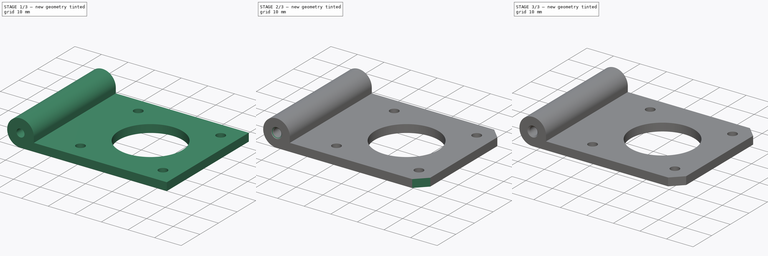
[diagram: build sequence overview — one tinted view per stage of 3, left to right]
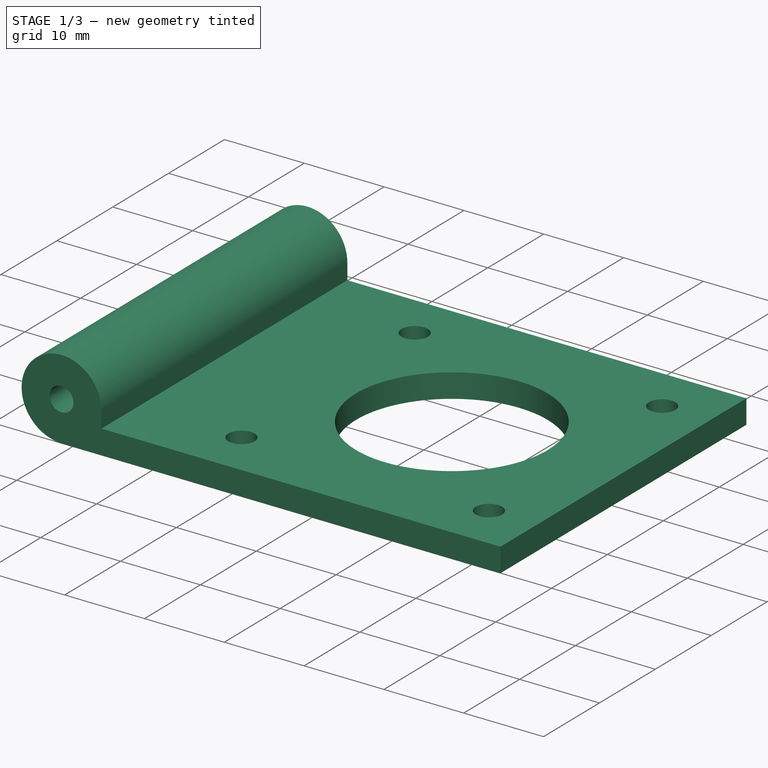
[diagram: stage 1 of 3 — iso view after this stage's code; geometry added in this stage tinted green]
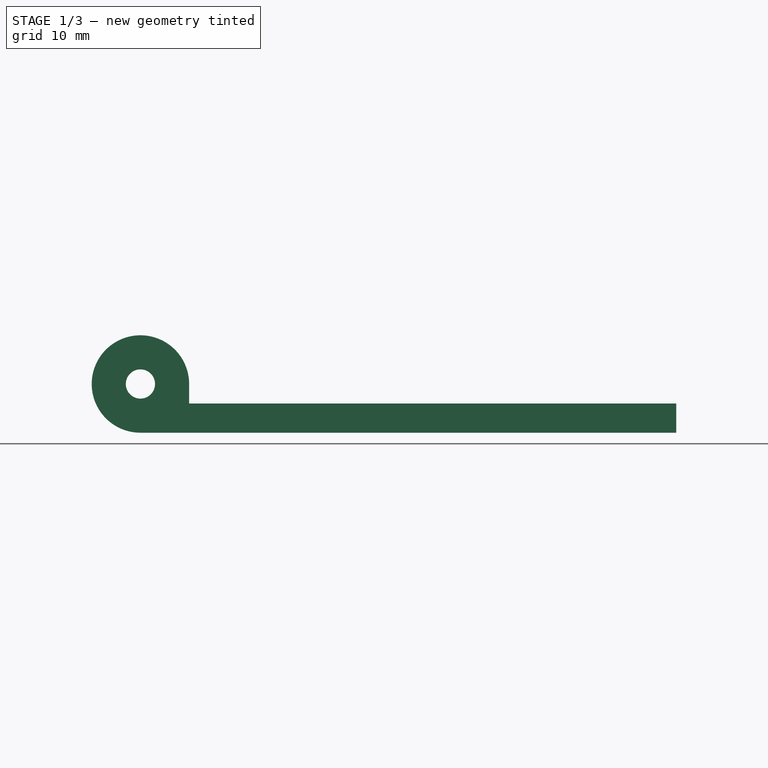
[diagram: stage 1 of 3 — front view after this stage's code; geometry added in this stage tinted green]
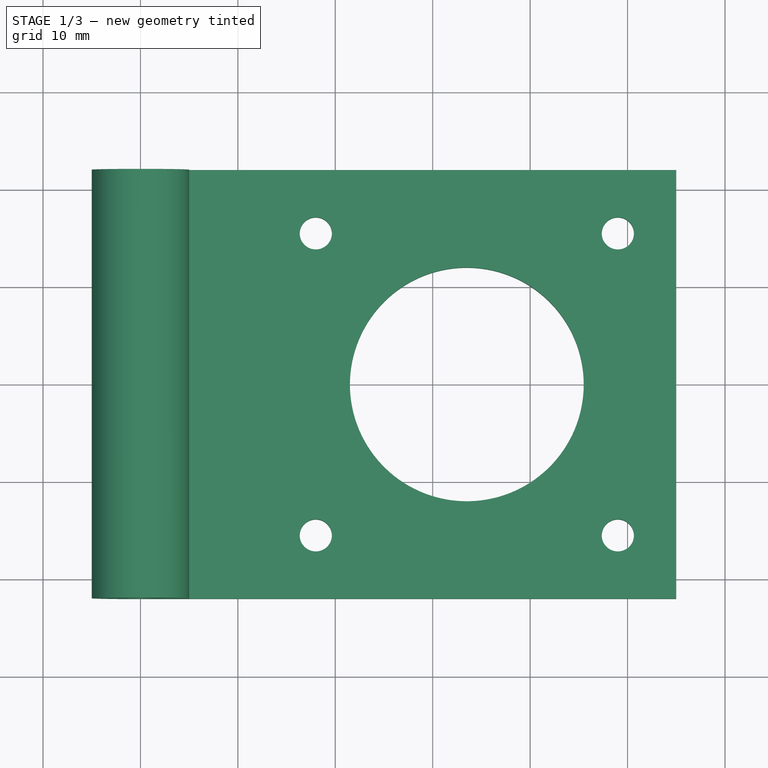
[diagram: stage 1 of 3 — top view after this stage's code; geometry added in this stage tinted green]
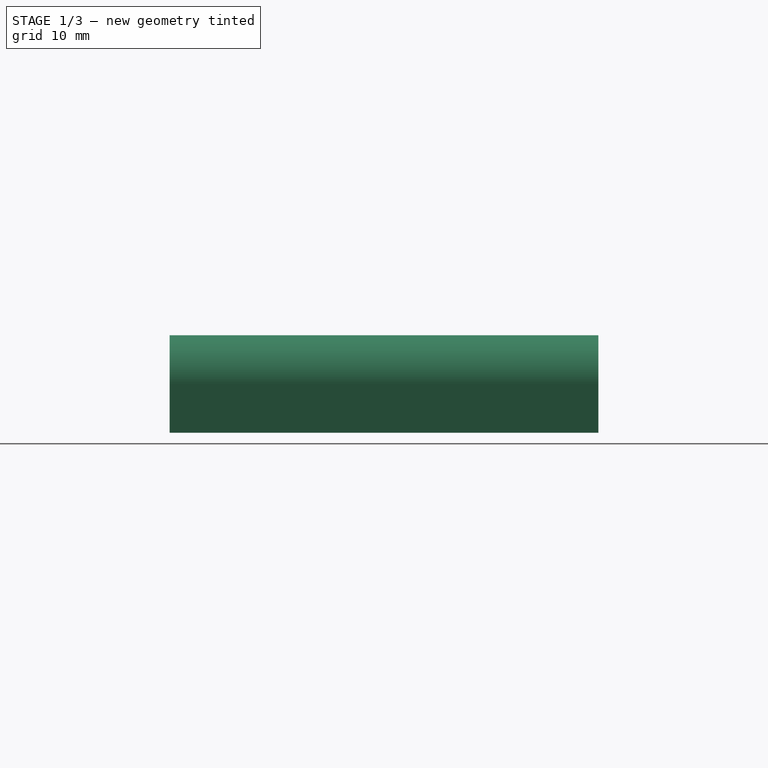
[diagram: stage 1 of 3 — right view after this stage's code; geometry added in this stage tinted green]
FCSTD DOCUMENT  (FreeCAD 0.16R6712 (Git))
Label: base_v2_atras
License: All rights reserved
LicenseURL: http://en.wikipedia.org/wiki/All_rights_reserved
objects: Sketcher::SketchObject×3, PartDesign::Chamfer×3, PartDesign::Pad×2, PartDesign::Pocket×1
note: 12 computed .brp shape members not serialized (recipe doc carries the construction recipe); baked Part::Feature solids carry a one-line shape summary decoded from their .brp

FEATURE [Sketcher::SketchObject] Sketch
  Placement = pos=(0,0,0) rot=(1,0,0;1.5708rad)
  sketch-geometry (6):
    g0: Circle CenterX=0 CenterY=5 CenterZ=0 NormalX=0 NormalY=0 NormalZ=1 Radius=1.5
    g1: ArcOfCircle CenterX=0 CenterY=5 CenterZ=0 NormalX=0 NormalY=0 NormalZ=1 Radius=5 StartAngle=4.92734e-06 EndAngle=4.71239
    g2: LineSegment StartX=1e-12 StartY=0 StartZ=0 EndX=55 EndY=0 EndZ=0
    g3: LineSegment StartX=55 StartY=0 StartZ=0 EndX=55 EndY=3 EndZ=0
    g4: LineSegment StartX=55 StartY=3 StartZ=0 EndX=5 EndY=3 EndZ=0
    g5: LineSegment StartX=5 StartY=3 StartZ=0 EndX=5 EndY=5.00002 EndZ=0
  constraints (17):
    c: Coincident(g1,g0)
    c: PointOnObject(g1,g-1)
    c: Tangent(g1,g2) = -1.5708
    c: Coincident(g2,g3)
    c: Vertical(g3)
    c: Coincident(g3,g4)
    c: Horizontal(g4)
    c: Horizontal(g2)
    c: PointOnObject(g0,g-2)
    c: Radius(g0) = 1.5
    c: Radius(g1) = 5
    c: DistanceY(g3,g3) = 3
    c: Coincident(g5,g4)
    c: Coincident(g5,g1)
    c: Vertical(g5)
    c: Tangent(g1,g5)
    c: DistanceX(g4,g4) = 50
FEATURE [PartDesign::Pad] Pad
  Length = 44
  Length2 = 100
  Midplane = true
  Placement = pos=(0,0,0) rot=(1,0,0;1.5708rad)
  Sketch = -> Sketch
  Type = 0
FEATURE [Sketcher::SketchObject] Sketch001
  ExternalGeometry = -> [Pad]
  Placement = pos=(0,0,3) rot=(0,0,1;3.14159rad)
  Support = -> Pad [Face4]
  sketch-geometry (9):
    g0: LineSegment [constr] StartX=-49 StartY=15.5 StartZ=0 EndX=-18 EndY=15.5 EndZ=0
    g1: LineSegment [constr] StartX=-18 StartY=15.5 StartZ=0 EndX=-18 EndY=-15.5 EndZ=0
    g2: LineSegment [constr] StartX=-18 StartY=-15.5 StartZ=0 EndX=-49 EndY=-15.5 EndZ=0
    g3: LineSegment [constr] StartX=-49 StartY=-15.5 StartZ=0 EndX=-49 EndY=15.5 EndZ=0
    g4: Circle CenterX=-33.5 CenterY=0 CenterZ=0 NormalX=0 NormalY=0 NormalZ=1 Radius=12
    g5: Circle CenterX=-49 CenterY=15.5 CenterZ=0 NormalX=0 NormalY=0 NormalZ=1 Radius=1.65
    g6: Circle CenterX=-18 CenterY=15.5 CenterZ=0 NormalX=0 NormalY=0 NormalZ=1 Radius=1.65
    g7: Circle CenterX=-18 CenterY=-15.5 CenterZ=0 NormalX=0 NormalY=0 NormalZ=1 Radius=1.65
    g8: Circle CenterX=-49 CenterY=-15.5 CenterZ=0 NormalX=0 NormalY=0 NormalZ=1 Radius=1.65
  constraints (23):
    c: Coincident(g0,g1)
    c: Coincident(g1,g2)
    c: Coincident(g2,g3)
    c: Coincident(g3,g0)
    c: Horizontal(g0)
    c: Horizontal(g2)
    c: Vertical(g1)
    c: Vertical(g3)
    c: Equal(g0,g3)
    c: DistanceY(g3,g3) = 31
    c: Symmetric(g2,g0,g-1)
    c: DistanceX(g-3,g0) = 6
    c: PointOnObject(g4,g-1)
    c: Radius(g4) = 12
    c: DistanceX(g0,g4) = 15.5
    c: Coincident(g5,g0)
    c: Coincident(g6,g0)
    c: Coincident(g7,g1)
    c: Coincident(g8,g2)
    c: Radius(g8) = 1.65
    c: Equal(g8,g5)
    c: Equal(g8,g6)
    c: Equal(g8,g7)
FEATURE [PartDesign::Pocket] Pocket
  Length = 5
  Placement = pos=(0,0,0) rot=(1,0,0;1.5708rad)
  Sketch = -> Sketch001
  Type = 1
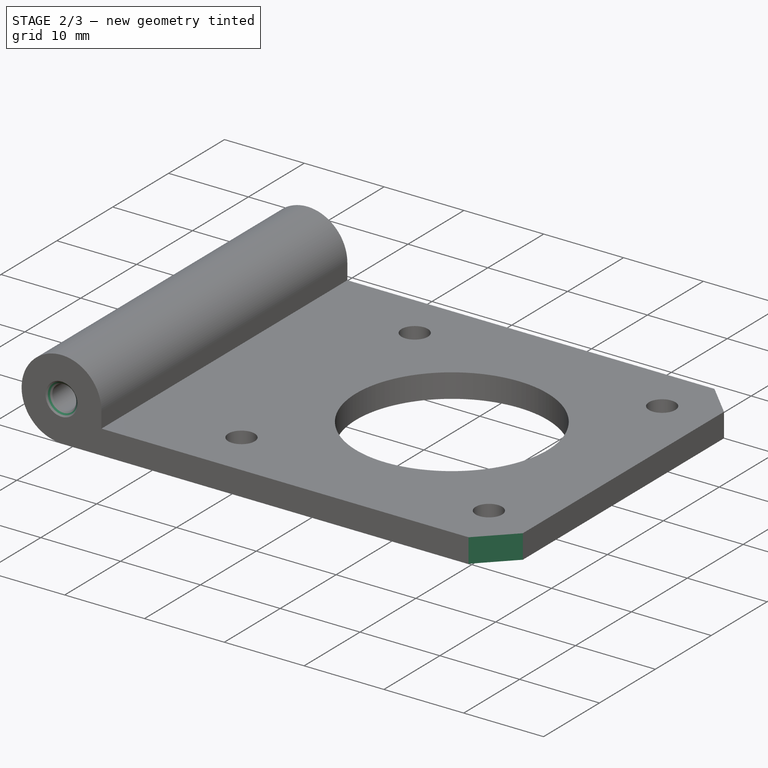
[diagram: stage 2 of 3 — iso view after this stage's code; geometry added in this stage tinted green]
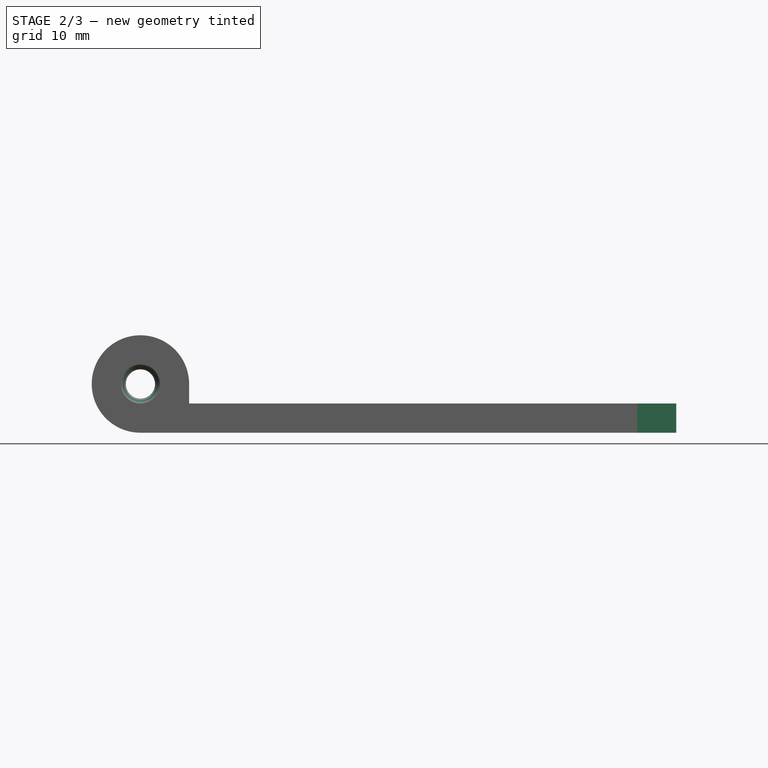
[diagram: stage 2 of 3 — front view after this stage's code; geometry added in this stage tinted green]
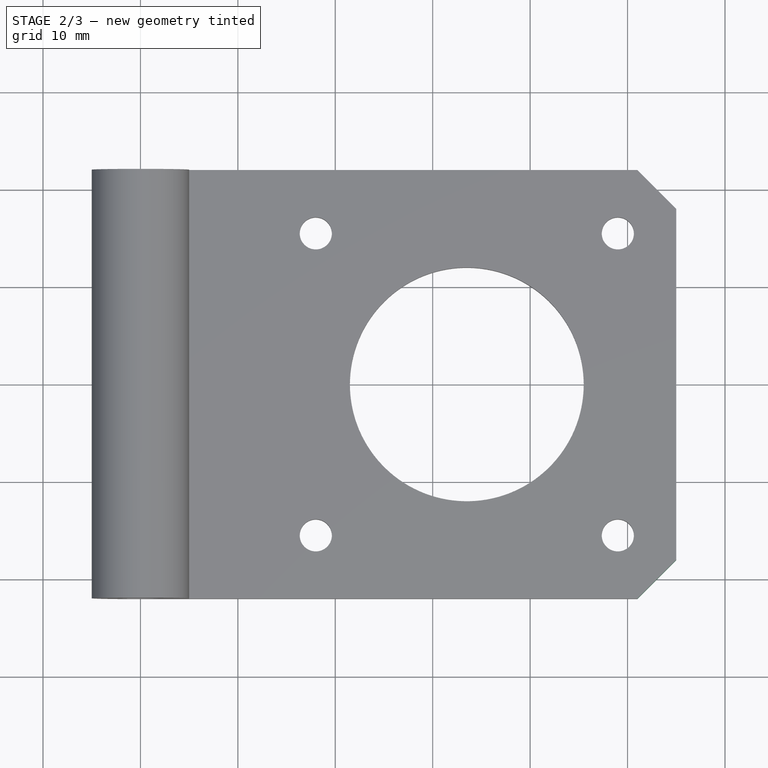
[diagram: stage 2 of 3 — top view after this stage's code; geometry added in this stage tinted green]
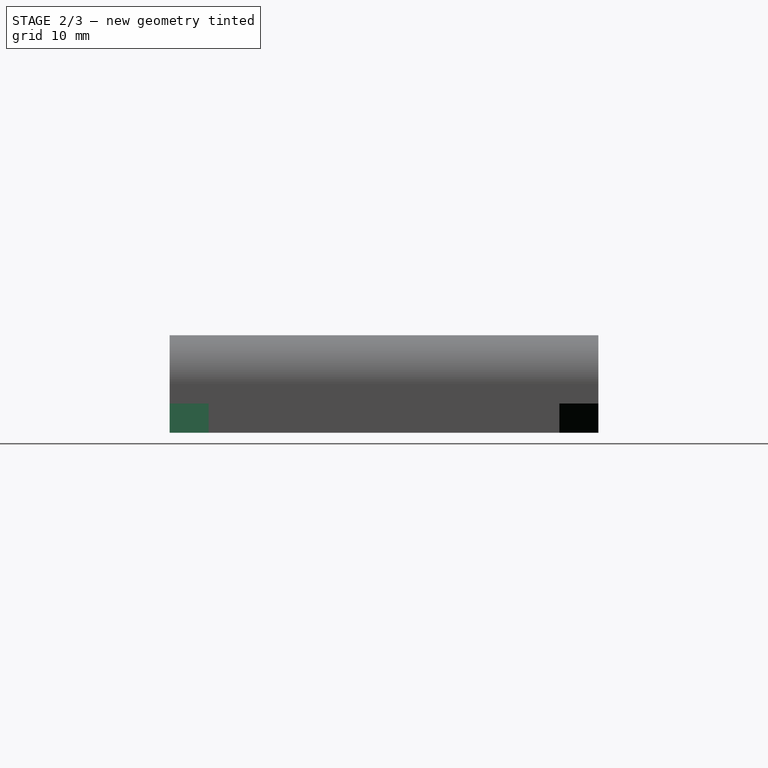
[diagram: stage 2 of 3 — right view after this stage's code; geometry added in this stage tinted green]
FEATURE [PartDesign::Chamfer] Chamfer
  Base = -> Pocket [Edge21,Edge18]
  Placement = pos=(0,0,0) rot=(1,0,0;1.5708rad)
  Size = 0.5
FEATURE [PartDesign::Chamfer] Chamfer001
  Base = -> Chamfer [Edge4,Edge20]
  Placement = pos=(0,0,0) rot=(1,0,0;1.5708rad)
  Size = 4
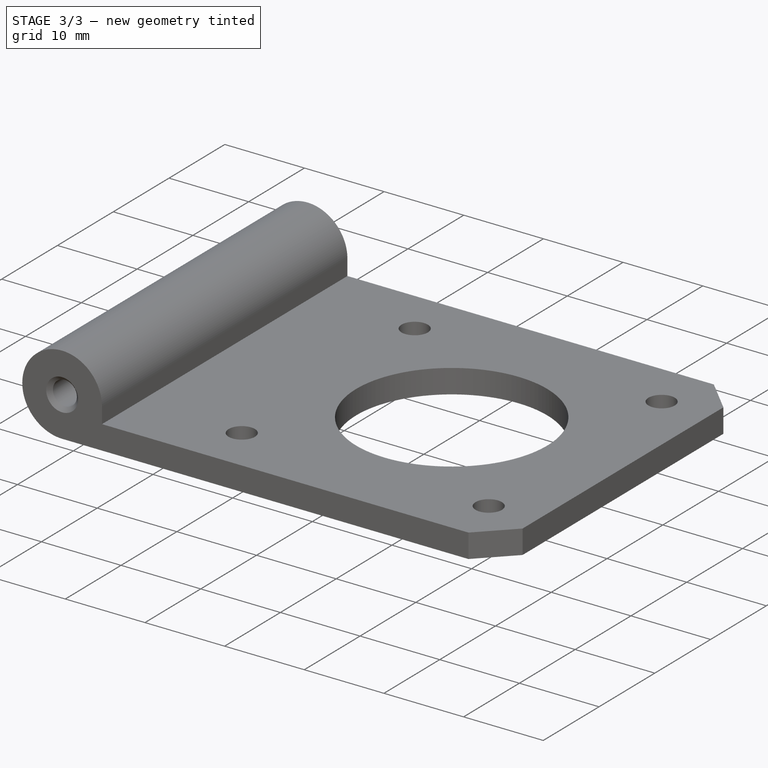
[diagram: stage 3 of 3 — iso view after this stage's code; geometry added in this stage tinted green]
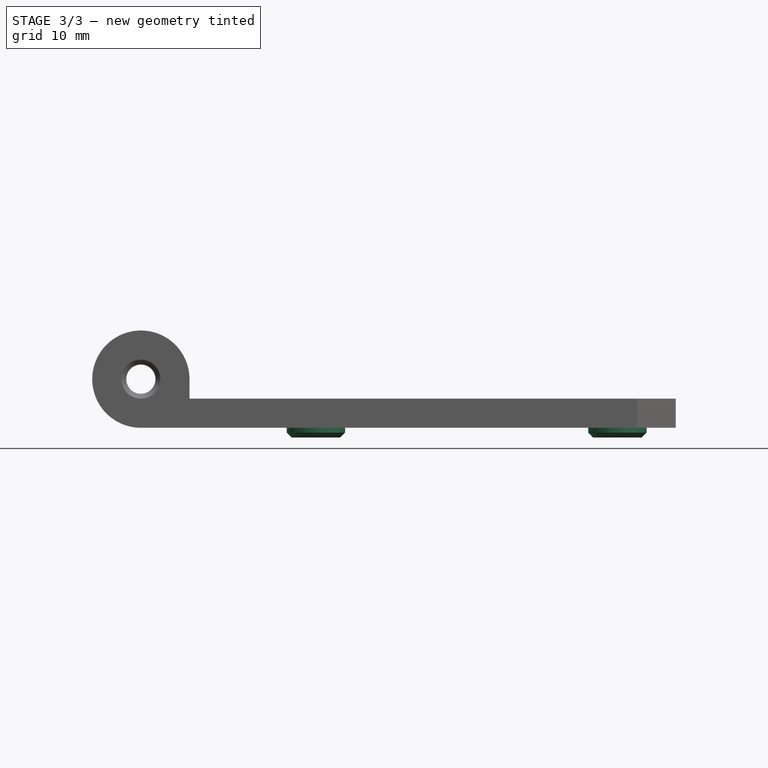
[diagram: stage 3 of 3 — front view after this stage's code; geometry added in this stage tinted green]
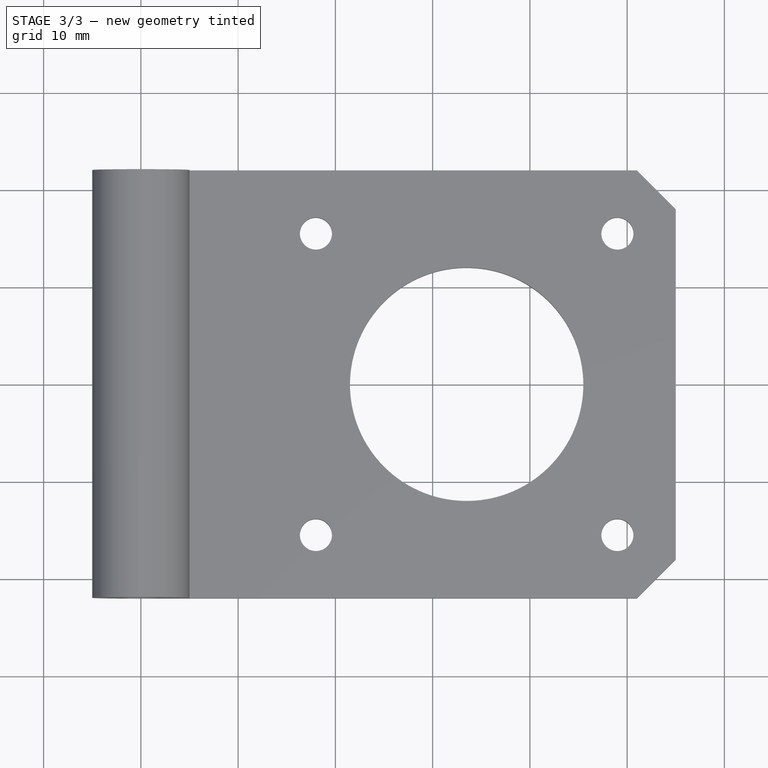
[diagram: stage 3 of 3 — top view after this stage's code; geometry added in this stage tinted green]
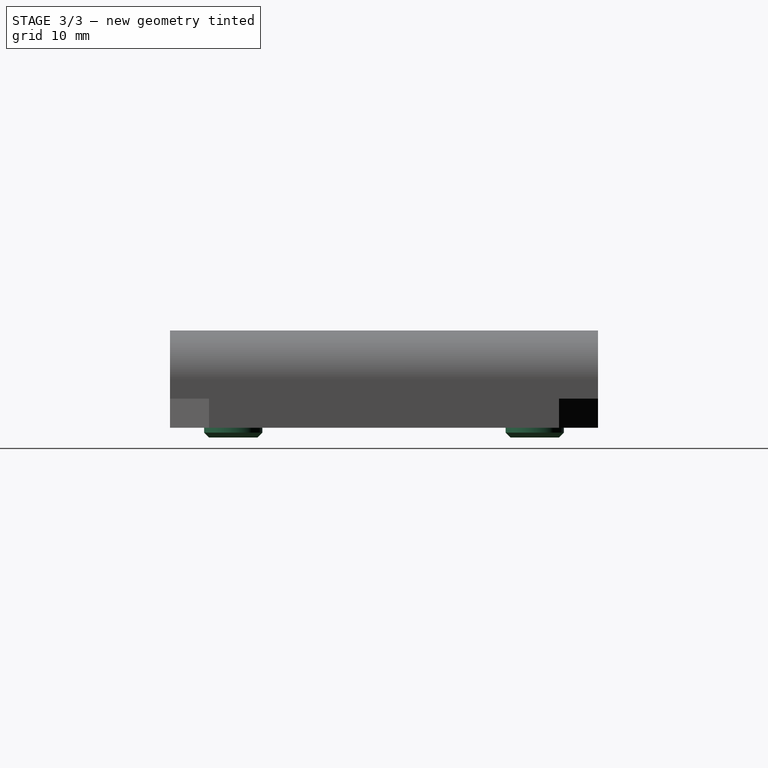
[diagram: stage 3 of 3 — right view after this stage's code; geometry added in this stage tinted green]
FEATURE [Sketcher::SketchObject] Sketch002
  ExternalGeometry = -> [Chamfer001]
  Placement = pos=(0,0,0) rot=(1,0,0;3.14159rad)
  Support = -> Chamfer001 [Face2]
  sketch-geometry (4):
    g0: Circle CenterX=49 CenterY=-15.5 CenterZ=0 NormalX=0 NormalY=0 NormalZ=1 Radius=3
    g1: Circle CenterX=49 CenterY=-15.5 CenterZ=0 NormalX=0 NormalY=0 NormalZ=1 Radius=1.8
    g2: Circle CenterX=18 CenterY=15.5 CenterZ=0 NormalX=0 NormalY=0 NormalZ=1 Radius=1.8
    g3: Circle CenterX=18 CenterY=15.5 CenterZ=0 NormalX=0 NormalY=0 NormalZ=1 Radius=3
  constraints (8):
    c: Coincident(g0,g-3)
    c: Coincident(g1,g0)
    c: Coincident(g2,g-4)
    c: Coincident(g3,g2)
    c: Radius(g2) = 1.8
    c: Equal(g2,g1)
    c: Radius(g3) = 3
    c: Equal(g3,g0)
FEATURE [PartDesign::Pad] Pad001
  Length = 1
  Length2 = 100
  Placement = pos=(0,0,0) rot=(1,0,0;1.5708rad)
  Sketch = -> Sketch002
  Type = 0
FEATURE [PartDesign::Chamfer] Chamfer002
  Base = -> Pad001 [Edge37,Edge41]
  Placement = pos=(0,0,0) rot=(1,0,0;1.5708rad)
  Size = 0.5
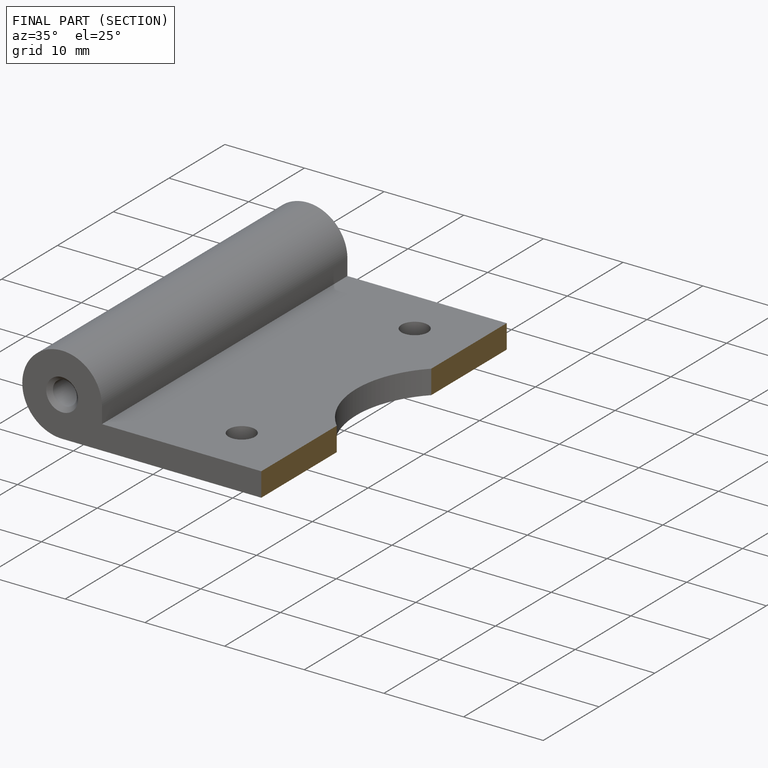
[diagram: finished part — half-section view (interior)]
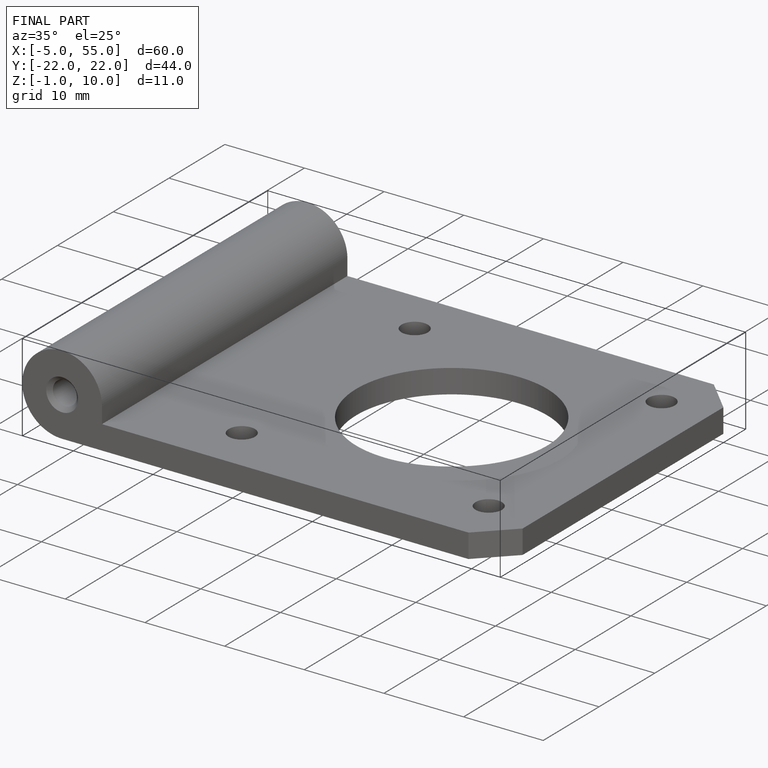
[diagram: finished part — iso view with bounding-box wireframe]
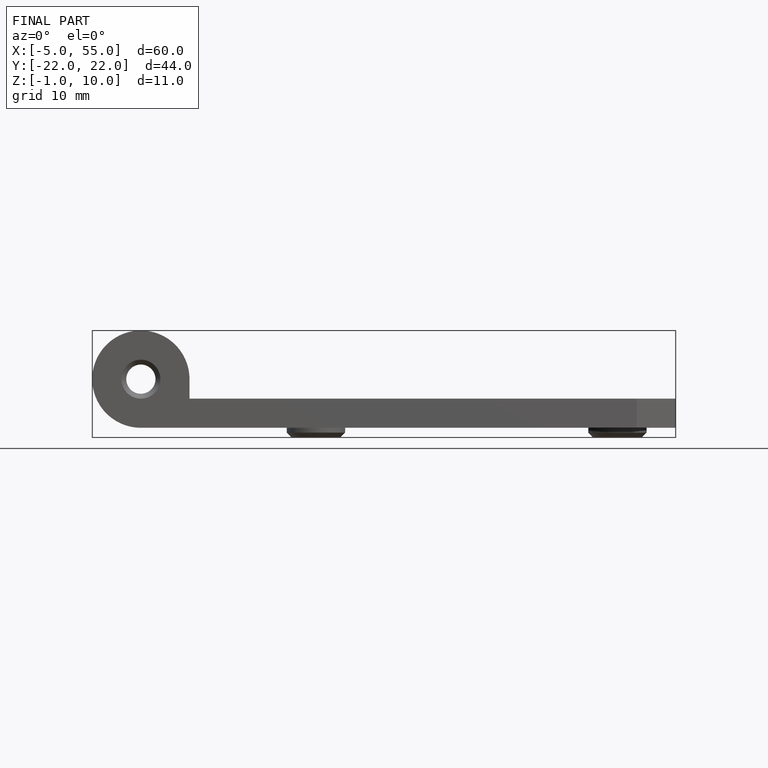
[diagram: finished part — front view with bounding-box wireframe]
